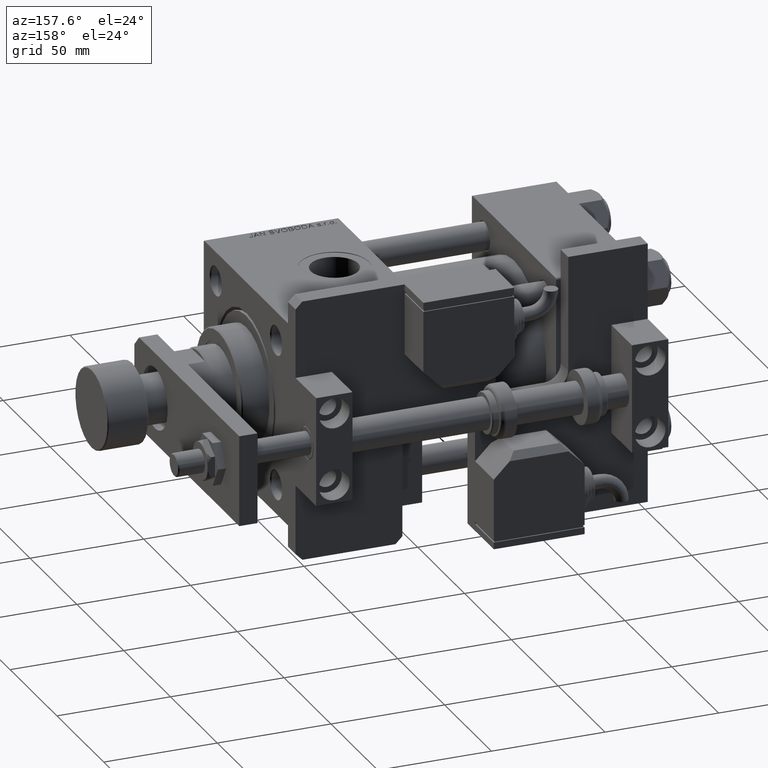
[diagram: clean part render]
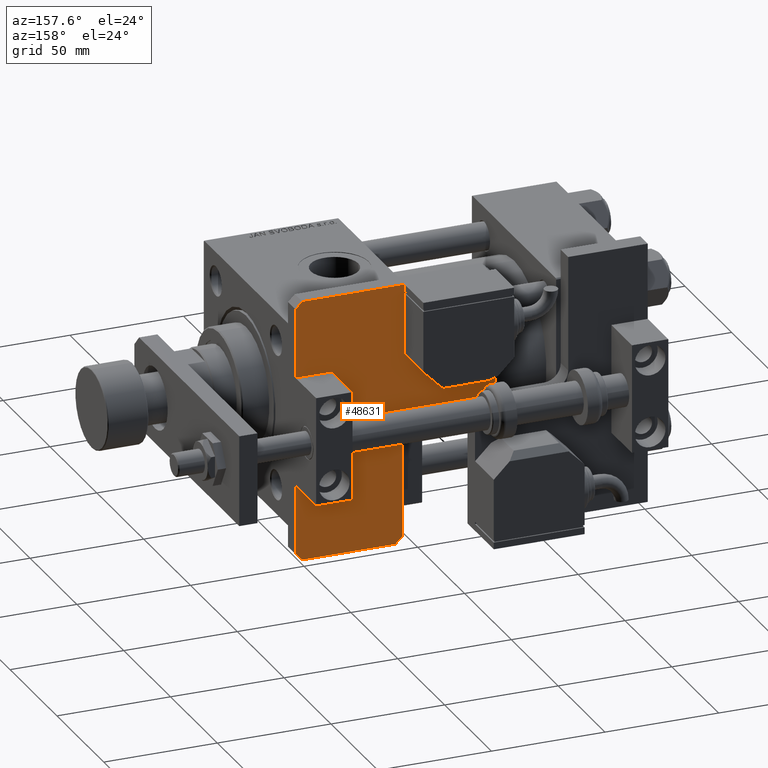
[diagram: same view with one face highlighted and labeled with its STEP entity id]
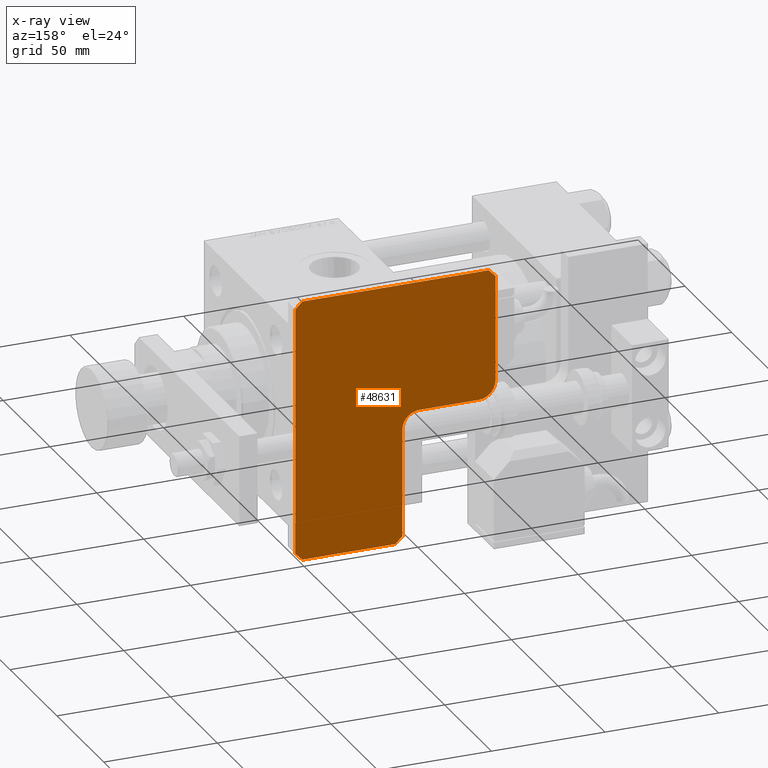
[diagram: x-ray of the same camera — body ghosted, the highlighted face saturated]
A machine part, auxiliary view. The second image highlights one B-rep face of the part: STEP entity #48631.
The next image is the same camera in x-ray: the body ghosted, the highlighted face saturated — about 0% of this face is hidden behind the body in this view.
In plain terms, the highlighted planar face has unit normal (0, 1, 0).
Its self-contained STEP definition (entity closure, byte-faithful):
#384 = VECTOR ( 'NONE', #45907, 1000.000000000000114 ) ;
#2388 = EDGE_LOOP ( 'NONE', ( #4694, #3153, #48592, #38387, #29242, #21126, #44037, #52938, #5140, #47906, #55586, #18201 ) ) ;
#2714 = CARTESIAN_POINT ( 'NONE',  ( 1.500000000000001332, 1.499999999999987566, 8.000000000000000000 ) ) ;
#2970 = VECTOR ( 'NONE', #50626, 1000.000000000000114 ) ;
#2985 = CARTESIAN_POINT ( 'NONE',  ( 3.000000000000002665, 88.00000000000000000, 8.000000000000000000 ) ) ;
#3153 = ORIENTED_EDGE ( 'NONE', *, *, #9046, .T. ) ;
#4083 = VERTEX_POINT ( 'NONE', #54579 ) ;
#4386 = VECTOR ( 'NONE', #38077, 1000.000000000000114 ) ;
#4694 = ORIENTED_EDGE ( 'NONE', *, *, #27789, .T. ) ;
#5140 = ORIENTED_EDGE ( 'NONE', *, *, #25950, .T. ) ;
#5874 = CARTESIAN_POINT ( 'NONE',  ( 114.9999999999999858, 43.99999999999998579, 8.000000000000000000 ) ) ;
#7707 = VERTEX_POINT ( 'NONE', #55781 ) ;
#7821 = DIRECTION ( 'NONE',  ( 1.000000000000000000, 0.000000000000000000, 0.000000000000000000 ) ) ;
#9046 = EDGE_CURVE ( 'NONE', #34793, #44542, #24801, .T. ) ;
#9849 = LINE ( 'NONE', #40081, #34393 ) ;
#10089 = DIRECTION ( 'NONE',  ( 0.000000000000000000, 1.000000000000000000, 0.000000000000000000 ) ) ;
#10547 = DIRECTION ( 'NONE',  ( 0.000000000000000000, -0.000000000000000000, 1.000000000000000000 ) ) ;
#10627 = DIRECTION ( 'NONE',  ( 1.000000000000000000, 0.000000000000000000, 0.000000000000000000 ) ) ;
#10697 = CARTESIAN_POINT ( 'NONE',  ( 56.99999999999999289, 88.00000000000000000, 8.000000000000000000 ) ) ;
#10850 = CARTESIAN_POINT ( 'NONE',  ( 56.99999999999999289, 54.49999999999998579, 8.000000000000000000 ) ) ;
#12218 = VECTOR ( 'NONE', #43866, 1000.000000000000000 ) ;
#12538 = VECTOR ( 'NONE', #48868, 1000.000000000000000 ) ;
#13277 = VERTEX_POINT ( 'NONE', #20755 ) ;
#13590 = CARTESIAN_POINT ( 'NONE',  ( 112.0000000000000142, 46.99999999999998579, 8.000000000000000000 ) ) ;
#14157 = DIRECTION ( 'NONE',  ( 0.000000000000000000, 1.000000000000000000, 0.000000000000000000 ) ) ;
#14621 = EDGE_CURVE ( 'NONE', #53790, #13277, #20687, .T. ) ;
#14880 = VECTOR ( 'NONE', #54777, 1000.000000000000000 ) ;
#14924 = AXIS2_PLACEMENT_3D ( 'NONE', #36299, #53689, #10627 ) ;
#16631 = VECTOR ( 'NONE', #10089, 1000.000000000000000 ) ;
#16684 = LINE ( 'NONE', #55462, #2970 ) ;
#18201 = ORIENTED_EDGE ( 'NONE', *, *, #40582, .T. ) ;
#18278 = PLANE ( 'NONE',  #44095 ) ;
#18829 = LINE ( 'NONE', #36217, #53098 ) ;
#20687 = LINE ( 'NONE', #2714, #4386 ) ;
#20755 = CARTESIAN_POINT ( 'NONE',  ( 2.999999999999975131, 0.000000000000000000, 8.000000000000000000 ) ) ;
#21126 = ORIENTED_EDGE ( 'NONE', *, *, #24531, .T. ) ;
#21518 = CARTESIAN_POINT ( 'NONE',  ( 64.50000000000000000, 46.99999999999998579, 8.000000000000000000 ) ) ;
#23405 = CARTESIAN_POINT ( 'NONE',  ( 0.000000000000000000, 0.000000000000000000, 8.000000000000000000 ) ) ;
#24368 = VERTEX_POINT ( 'NONE', #41849 ) ;
#24469 = AXIS2_PLACEMENT_3D ( 'NONE', #28659, #46043, #7821 ) ;
#24531 = EDGE_CURVE ( 'NONE', #48755, #7707, #16684, .T. ) ;
#24801 = LINE ( 'NONE', #42193, #384 ) ;
#25112 = CARTESIAN_POINT ( 'NONE',  ( 114.9999999999999858, 46.99999999999998579, 8.000000000000000000 ) ) ;
#25687 = EDGE_CURVE ( 'NONE', #44542, #53790, #39983, .T. ) ;
#25950 = EDGE_CURVE ( 'NONE', #51124, #35416, #37386, .T. ) ;
#26543 = CARTESIAN_POINT ( 'NONE',  ( 0.000000000000000000, 3.000000000000002665, 8.000000000000000000 ) ) ;
#27075 = EDGE_CURVE ( 'NONE', #35416, #28294, #44932, .T. ) ;
#27231 = CARTESIAN_POINT ( 'NONE',  ( 56.99999999999999289, 46.99999999999998579, 8.000000000000000000 ) ) ;
#27789 = EDGE_CURVE ( 'NONE', #4083, #34793, #39604, .T. ) ;
#28294 = VERTEX_POINT ( 'NONE', #10850 ) ;
#28659 = CARTESIAN_POINT ( 'NONE',  ( 49.49999999999999289, 80.49999999999998579, 8.000000000000000000 ) ) ;
#29242 = ORIENTED_EDGE ( 'NONE', *, *, #35479, .T. ) ;
#32007 = VERTEX_POINT ( 'NONE', #5874 ) ;
#32175 = VECTOR ( 'NONE', #51681, 1000.000000000000000 ) ;
#34393 = VECTOR ( 'NONE', #14157, 1000.000000000000000 ) ;
#34793 = VERTEX_POINT ( 'NONE', #2985 ) ;
#35416 = VERTEX_POINT ( 'NONE', #21518 ) ;
#35479 = EDGE_CURVE ( 'NONE', #13277, #48755, #49712, .T. ) ;
#36217 = CARTESIAN_POINT ( 'NONE',  ( 79.50000000000051159, 79.49999999999977263, 8.000000000000000000 ) ) ;
#36299 = CARTESIAN_POINT ( 'NONE',  ( 64.50000000000000000, 54.49999999999998579, 8.000000000000000000 ) ) ;
#37386 = LINE ( 'NONE', #25112, #14880 ) ;
#38077 = DIRECTION ( 'NONE',  ( 0.7071067811865441310, -0.7071067811865507924, -0.000000000000000000 ) ) ;
#38387 = ORIENTED_EDGE ( 'NONE', *, *, #14621, .T. ) ;
#39076 = EDGE_CURVE ( 'NONE', #7707, #32007, #9849, .T. ) ;
#39604 = LINE ( 'NONE', #10697, #12218 ) ;
#39983 = LINE ( 'NONE', #43966, #32175 ) ;
#40081 = CARTESIAN_POINT ( 'NONE',  ( 114.9999999999999858, 0.000000000000000000, 8.000000000000000000 ) ) ;
#40582 = EDGE_CURVE ( 'NONE', #24368, #4083, #42651, .T. ) ;
#40618 = LINE ( 'NONE', #27231, #16631 ) ;
#40787 = DIRECTION ( 'NONE',  ( 1.000000000000000000, 0.000000000000000000, -0.000000000000000000 ) ) ;
#41849 = CARTESIAN_POINT ( 'NONE',  ( 56.99999999999999289, 80.49999999999997158, 8.000000000000000000 ) ) ;
#42193 = CARTESIAN_POINT ( 'NONE',  ( -42.50000000000000711, 42.50000000000040501, 8.000000000000000000 ) ) ;
#42651 = CIRCLE ( 'NONE', #24469, 7.500000000000000000 ) ;
#43866 = DIRECTION ( 'NONE',  ( -1.000000000000000000, 0.000000000000000000, 0.000000000000000000 ) ) ;
#43966 = CARTESIAN_POINT ( 'NONE',  ( 0.000000000000000000, 88.00000000000000000, 8.000000000000000000 ) ) ;
#44018 = CARTESIAN_POINT ( 'NONE',  ( 0.000000000000000000, 0.000000000000000000, 8.000000000000000000 ) ) ;
#44037 = ORIENTED_EDGE ( 'NONE', *, *, #39076, .T. ) ;
#44095 = AXIS2_PLACEMENT_3D ( 'NONE', #23405, #10547, #40787 ) ;
#44542 = VERTEX_POINT ( 'NONE', #47194 ) ;
#44613 = EDGE_CURVE ( 'NONE', #28294, #24368, #40618, .T. ) ;
#44932 = CIRCLE ( 'NONE', #14924, 7.500000000000007105 ) ;
#45907 = DIRECTION ( 'NONE',  ( -0.7071067811865507924, -0.7071067811865441310, -0.000000000000000000 ) ) ;
#46043 = DIRECTION ( 'NONE',  ( 0.000000000000000000, -0.000000000000000000, 1.000000000000000000 ) ) ;
#46304 = EDGE_CURVE ( 'NONE', #32007, #51124, #18829, .T. ) ;
#47194 = CARTESIAN_POINT ( 'NONE',  ( 0.000000000000000000, 85.00000000000001421, 8.000000000000000000 ) ) ;
#47906 = ORIENTED_EDGE ( 'NONE', *, *, #27075, .T. ) ;
#48592 = ORIENTED_EDGE ( 'NONE', *, *, #25687, .T. ) ;
#48631 = ADVANCED_FACE ( 'NONE', ( #49060 ), #18278, .T. ) ;
#48755 = VERTEX_POINT ( 'NONE', #51010 ) ;
#48868 = DIRECTION ( 'NONE',  ( 1.000000000000000000, 0.000000000000000000, 0.000000000000000000 ) ) ;
#49060 = FACE_OUTER_BOUND ( 'NONE', #2388, .T. ) ;
#49712 = LINE ( 'NONE', #44018, #12538 ) ;
#50626 = DIRECTION ( 'NONE',  ( 0.7071067811865507924, 0.7071067811865441310, -0.000000000000000000 ) ) ;
#51010 = CARTESIAN_POINT ( 'NONE',  ( 111.9999999999999858, 0.000000000000000000, 8.000000000000000000 ) ) ;
#51124 = VERTEX_POINT ( 'NONE', #13590 ) ;
#51681 = DIRECTION ( 'NONE',  ( 0.000000000000000000, -1.000000000000000000, 0.000000000000000000 ) ) ;
#52938 = ORIENTED_EDGE ( 'NONE', *, *, #46304, .T. ) ;
#53098 = VECTOR ( 'NONE', #53611, 1000.000000000000114 ) ;
#53611 = DIRECTION ( 'NONE',  ( -0.7071067811865441310, 0.7071067811865507924, -0.000000000000000000 ) ) ;
#53689 = DIRECTION ( 'NONE',  ( -0.000000000000000000, 0.000000000000000000, -1.000000000000000000 ) ) ;
#53790 = VERTEX_POINT ( 'NONE', #26543 ) ;
#54579 = CARTESIAN_POINT ( 'NONE',  ( 49.49999999999999289, 88.00000000000000000, 8.000000000000000000 ) ) ;
#54777 = DIRECTION ( 'NONE',  ( -1.000000000000000000, 0.000000000000000000, 0.000000000000000000 ) ) ;
#55462 = CARTESIAN_POINT ( 'NONE',  ( 55.99999999999947420, -55.99999999999999289, 8.000000000000000000 ) ) ;
#55586 = ORIENTED_EDGE ( 'NONE', *, *, #44613, .T. ) ;
#55781 = CARTESIAN_POINT ( 'NONE',  ( 114.9999999999999858, 2.999999999999975131, 8.000000000000000000 ) ) ;